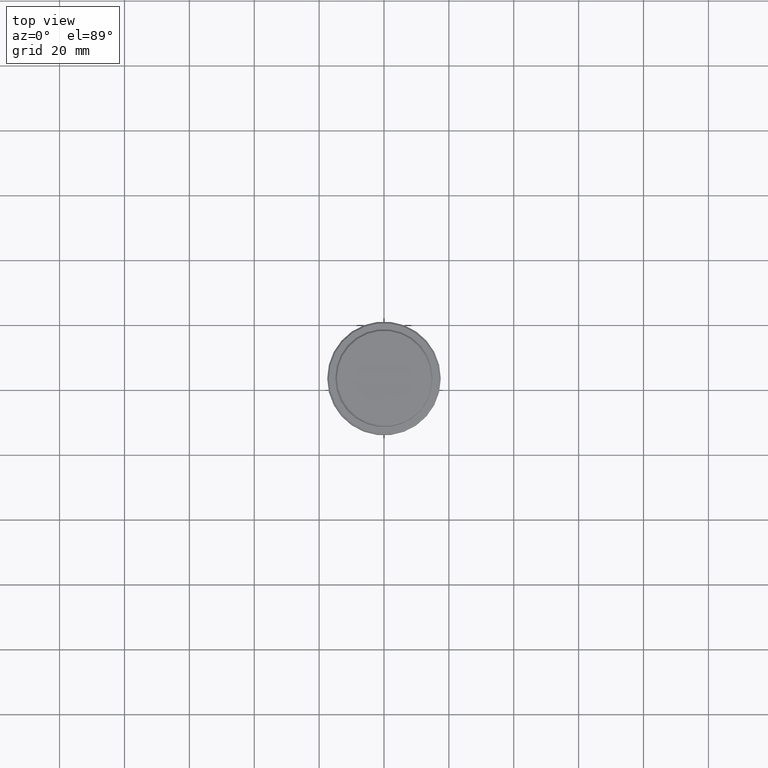
[diagram: clean part render]
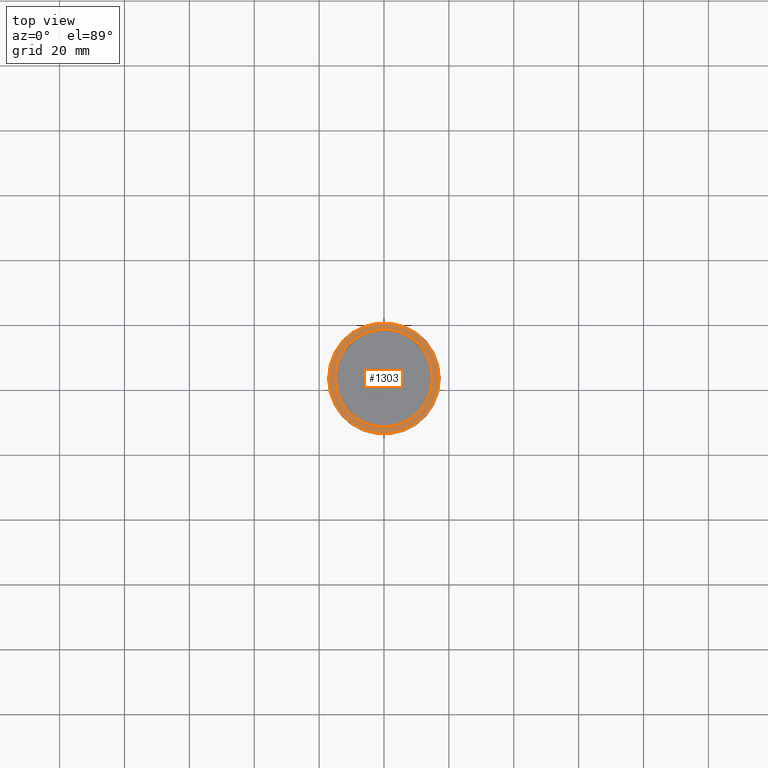
[diagram: same view with one face highlighted and labeled with its STEP entity id]
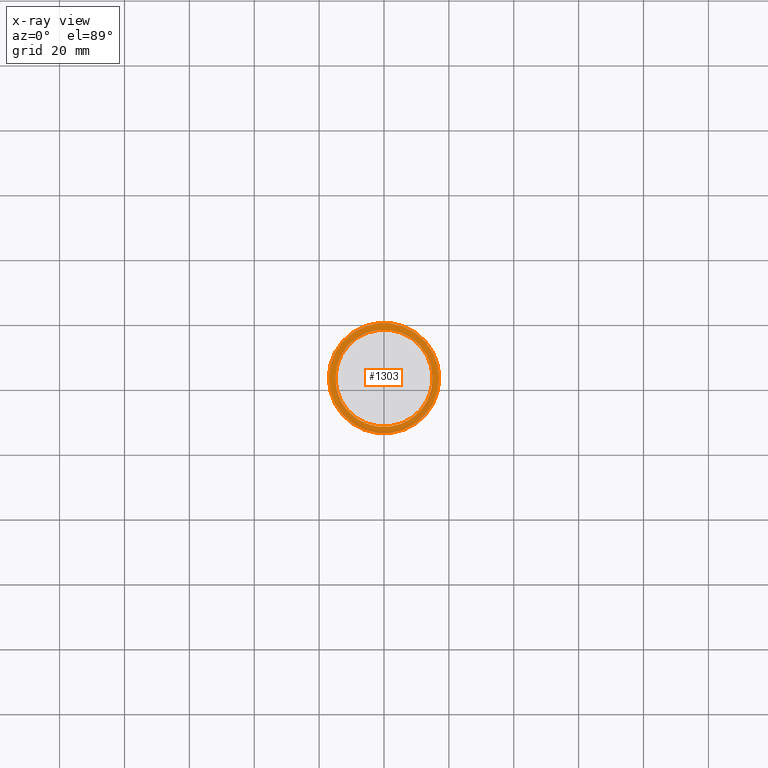
[diagram: x-ray of the same camera — body ghosted, the highlighted face saturated]
A machine part, top view. The second image highlights one B-rep face of the part: STEP entity #1303.
The next image is the same camera in x-ray: the body ghosted, the highlighted face saturated — about 0% of this face is hidden behind the body in this view.
In plain terms, the highlighted planar face has unit normal (0, -0, 1).
Its self-contained STEP definition (entity closure, byte-faithful):
#13 = CIRCLE ( 'NONE', #823, 16.99999999999998579 ) ;
#43 = CIRCLE ( 'NONE', #155, 14.99999999999999467 ) ;
#91 = CARTESIAN_POINT ( 'NONE',  ( 0.000000000000000000, 0.000000000000000000, -9.000000000000001776 ) ) ;
#102 = DIRECTION ( 'NONE',  ( 1.000000000000000000, 0.000000000000000000, 0.000000000000000000 ) ) ;
#118 = EDGE_CURVE ( 'NONE', #228, #585, #13, .T. ) ;
#132 = FACE_OUTER_BOUND ( 'NONE', #519, .T. ) ;
#143 = CARTESIAN_POINT ( 'NONE',  ( -16.99999999999998579, 0.000000000000000000, -9.000000000000001776 ) ) ;
#155 = AXIS2_PLACEMENT_3D ( 'NONE', #1357, #276, #370 ) ;
#183 = DIRECTION ( 'NONE',  ( 1.000000000000000000, 0.000000000000000000, 0.000000000000000000 ) ) ;
#228 = VERTEX_POINT ( 'NONE', #1193 ) ;
#258 = DIRECTION ( 'NONE',  ( 1.000000000000000000, 0.000000000000000000, 0.000000000000000000 ) ) ;
#276 = DIRECTION ( 'NONE',  ( 0.000000000000000000, 0.000000000000000000, -1.000000000000000000 ) ) ;
#316 = CIRCLE ( 'NONE', #1023, 14.99999999999999467 ) ;
#317 = CARTESIAN_POINT ( 'NONE',  ( 14.99999999999999467, 0.000000000000000000, -9.000000000000001776 ) ) ;
#361 = DIRECTION ( 'NONE',  ( 0.000000000000000000, -0.000000000000000000, 1.000000000000000000 ) ) ;
#370 = DIRECTION ( 'NONE',  ( 1.000000000000000000, 0.000000000000000000, 0.000000000000000000 ) ) ;
#496 = DIRECTION ( 'NONE',  ( -0.000000000000000000, -0.000000000000000000, 1.000000000000000000 ) ) ;
#519 = EDGE_LOOP ( 'NONE', ( #1395, #662 ) ) ;
#563 = ORIENTED_EDGE ( 'NONE', *, *, #1378, .T. ) ;
#585 = VERTEX_POINT ( 'NONE', #143 ) ;
#629 = AXIS2_PLACEMENT_3D ( 'NONE', #852, #1076, #102 ) ;
#662 = ORIENTED_EDGE ( 'NONE', *, *, #118, .T. ) ;
#674 = VERTEX_POINT ( 'NONE', #1381 ) ;
#701 = VERTEX_POINT ( 'NONE', #317 ) ;
#766 = ORIENTED_EDGE ( 'NONE', *, *, #1018, .T. ) ;
#823 = AXIS2_PLACEMENT_3D ( 'NONE', #91, #496, #1047 ) ;
#852 = CARTESIAN_POINT ( 'NONE',  ( 0.000000000000000000, 0.000000000000000000, -9.000000000000001776 ) ) ;
#903 = EDGE_CURVE ( 'NONE', #585, #228, #1389, .T. ) ;
#906 = AXIS2_PLACEMENT_3D ( 'NONE', #1239, #361, #258 ) ;
#909 = EDGE_LOOP ( 'NONE', ( #563, #766 ) ) ;
#1002 = PLANE ( 'NONE',  #906 ) ;
#1018 = EDGE_CURVE ( 'NONE', #674, #701, #43, .T. ) ;
#1023 = AXIS2_PLACEMENT_3D ( 'NONE', #1361, #1261, #183 ) ;
#1047 = DIRECTION ( 'NONE',  ( 1.000000000000000000, 0.000000000000000000, 0.000000000000000000 ) ) ;
#1076 = DIRECTION ( 'NONE',  ( -0.000000000000000000, -0.000000000000000000, 1.000000000000000000 ) ) ;
#1193 = CARTESIAN_POINT ( 'NONE',  ( 16.99999999999998579, 2.112515728529183278E-15, -9.000000000000001776 ) ) ;
#1229 = FACE_BOUND ( 'NONE', #909, .T. ) ;
#1239 = CARTESIAN_POINT ( 'NONE',  ( 0.000000000000000000, 14.49999999999999467, -9.000000000000001776 ) ) ;
#1261 = DIRECTION ( 'NONE',  ( 0.000000000000000000, 0.000000000000000000, -1.000000000000000000 ) ) ;
#1303 = ADVANCED_FACE ( 'NONE', ( #132, #1229 ), #1002, .T. ) ;
#1357 = CARTESIAN_POINT ( 'NONE',  ( 0.000000000000000000, 0.000000000000000000, -9.000000000000001776 ) ) ;
#1361 = CARTESIAN_POINT ( 'NONE',  ( 0.000000000000000000, 0.000000000000000000, -9.000000000000001776 ) ) ;
#1378 = EDGE_CURVE ( 'NONE', #701, #674, #316, .T. ) ;
#1381 = CARTESIAN_POINT ( 'NONE',  ( -14.99999999999999467, 1.836970198721029194E-15, -9.000000000000001776 ) ) ;
#1389 = CIRCLE ( 'NONE', #629, 16.99999999999998579 ) ;
#1395 = ORIENTED_EDGE ( 'NONE', *, *, #903, .T. ) ;